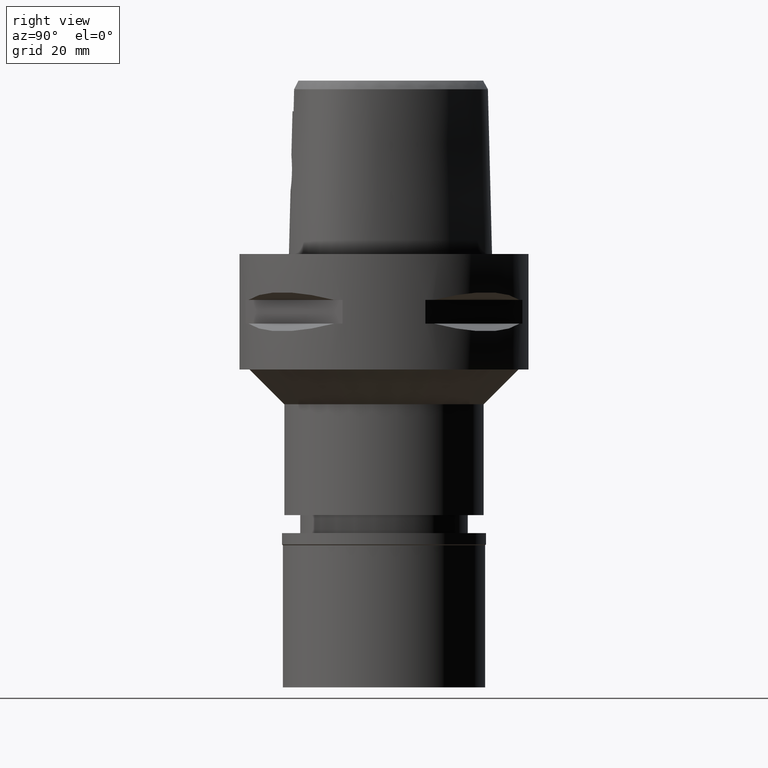
[diagram: clean part render]
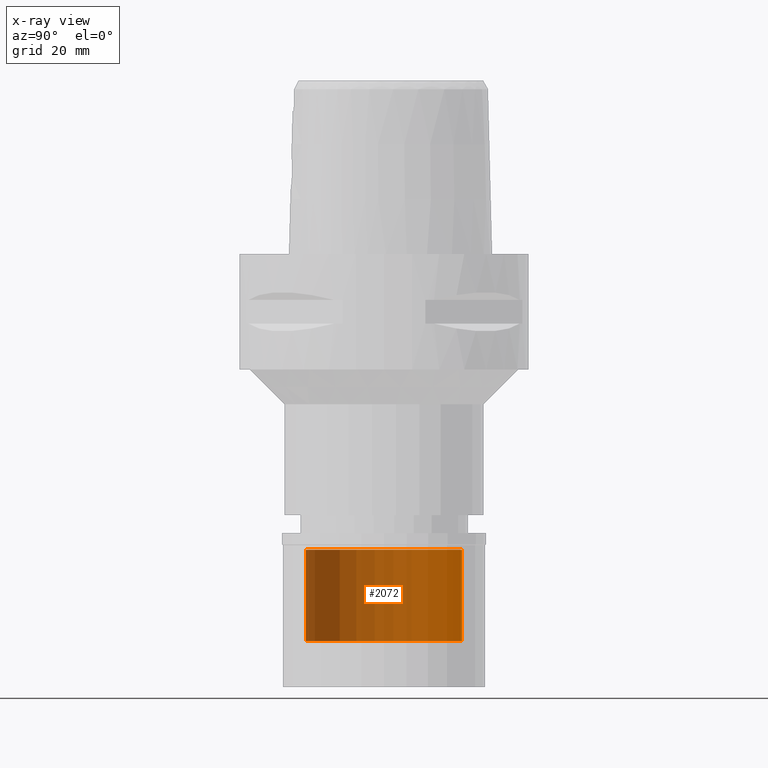
[diagram: x-ray — body ghosted, one internal face saturated and labeled with its STEP entity id]
A machine part, right view, then the same camera in x-ray: the body is ghosted and one INTERNAL B-rep face — a face not visible from any outside direction — is saturated and labeled: STEP entity #2072.
In plain terms, the highlighted cylindrical surface (partial cylindrical patch) has radius 13.5 mm, axis along (0, 0, -1).
Its self-contained STEP definition (entity closure, byte-faithful):
#394 = CARTESIAN_POINT ( 'NONE',  ( 0.0000000000000000000, -13.50000000000000000, -2.899999999999999911 ) ) ;
#493 = EDGE_CURVE ( 'NONE', #821, #4339, #1360, .T. ) ;
#598 = EDGE_CURVE ( 'NONE', #4748, #2251, #1056, .T. ) ;
#629 = CARTESIAN_POINT ( 'NONE',  ( 0.0000000000000000000, 13.50000000000000000, -18.70000000000000284 ) ) ;
#821 = VERTEX_POINT ( 'NONE', #4657 ) ;
#958 = DIRECTION ( 'NONE',  ( 0.0000000000000000000, -1.000000000000000000, 0.0000000000000000000 ) ) ;
#1056 = CIRCLE ( 'NONE', #1450, 13.50000000000000000 ) ;
#1139 = ORIENTED_EDGE ( 'NONE', *, *, #598, .T. ) ;
#1231 = AXIS2_PLACEMENT_3D ( 'NONE', #1708, #4362, #958 ) ;
#1280 = CARTESIAN_POINT ( 'NONE',  ( 0.0000000000000000000, 0.0000000000000000000, -2.899999999999999911 ) ) ;
#1360 = CIRCLE ( 'NONE', #3586, 13.50000000000000000 ) ;
#1450 = AXIS2_PLACEMENT_3D ( 'NONE', #2553, #2259, #3776 ) ;
#1472 = DIRECTION ( 'NONE',  ( 0.0000000000000000000, 1.000000000000000000, 0.0000000000000000000 ) ) ;
#1598 = ORIENTED_EDGE ( 'NONE', *, *, #493, .T. ) ;
#1708 = CARTESIAN_POINT ( 'NONE',  ( 0.0000000000000000000, 0.0000000000000000000, 0.0000000000000000000 ) ) ;
#2072 = ADVANCED_FACE ( 'NONE', ( #4719 ), #2446, .F. ) ;
#2166 = CARTESIAN_POINT ( 'NONE',  ( 0.0000000000000000000, -13.50000000000000000, -18.70000000000000284 ) ) ;
#2251 = VERTEX_POINT ( 'NONE', #629 ) ;
#2259 = DIRECTION ( 'NONE',  ( 0.0000000000000000000, 0.0000000000000000000, -1.000000000000000000 ) ) ;
#2446 = CYLINDRICAL_SURFACE ( 'NONE', #1231, 13.50000000000000000 ) ;
#2453 = VECTOR ( 'NONE', #2737, 1000.000000000000000 ) ;
#2553 = CARTESIAN_POINT ( 'NONE',  ( 0.0000000000000000000, 0.0000000000000000000, -18.70000000000000284 ) ) ;
#2661 = DIRECTION ( 'NONE',  ( 0.0000000000000000000, 0.0000000000000000000, 1.000000000000000000 ) ) ;
#2737 = DIRECTION ( 'NONE',  ( 0.0000000000000000000, 0.0000000000000000000, 1.000000000000000000 ) ) ;
#2842 = DIRECTION ( 'NONE',  ( 0.0000000000000000000, 0.0000000000000000000, 1.000000000000000000 ) ) ;
#2904 = ORIENTED_EDGE ( 'NONE', *, *, #3512, .F. ) ;
#3512 = EDGE_CURVE ( 'NONE', #4748, #4339, #3984, .T. ) ;
#3586 = AXIS2_PLACEMENT_3D ( 'NONE', #1280, #2661, #1472 ) ;
#3776 = DIRECTION ( 'NONE',  ( 0.0000000000000000000, -1.000000000000000000, 0.0000000000000000000 ) ) ;
#3850 = EDGE_CURVE ( 'NONE', #2251, #821, #4255, .T. ) ;
#3851 = EDGE_LOOP ( 'NONE', ( #1598, #2904, #1139, #3983 ) ) ;
#3983 = ORIENTED_EDGE ( 'NONE', *, *, #3850, .T. ) ;
#3984 = LINE ( 'NONE', #2166, #4668 ) ;
#4255 = LINE ( 'NONE', #4661, #2453 ) ;
#4339 = VERTEX_POINT ( 'NONE', #394 ) ;
#4362 = DIRECTION ( 'NONE',  ( 0.0000000000000000000, 0.0000000000000000000, -1.000000000000000000 ) ) ;
#4651 = CARTESIAN_POINT ( 'NONE',  ( 0.0000000000000000000, -13.50000000000000000, -18.70000000000000284 ) ) ;
#4657 = CARTESIAN_POINT ( 'NONE',  ( 0.0000000000000000000, 13.50000000000000000, -2.899999999999999911 ) ) ;
#4661 = CARTESIAN_POINT ( 'NONE',  ( 0.0000000000000000000, 13.50000000000000000, -18.70000000000000284 ) ) ;
#4668 = VECTOR ( 'NONE', #2842, 1000.000000000000000 ) ;
#4719 = FACE_OUTER_BOUND ( 'NONE', #3851, .T. ) ;
#4748 = VERTEX_POINT ( 'NONE', #4651 ) ;